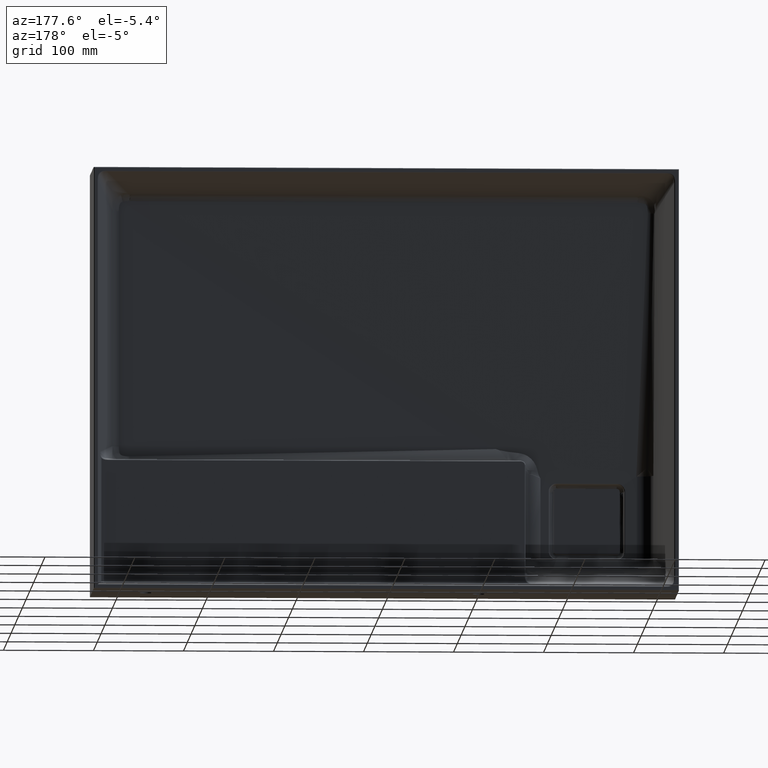
[diagram: clean part render]
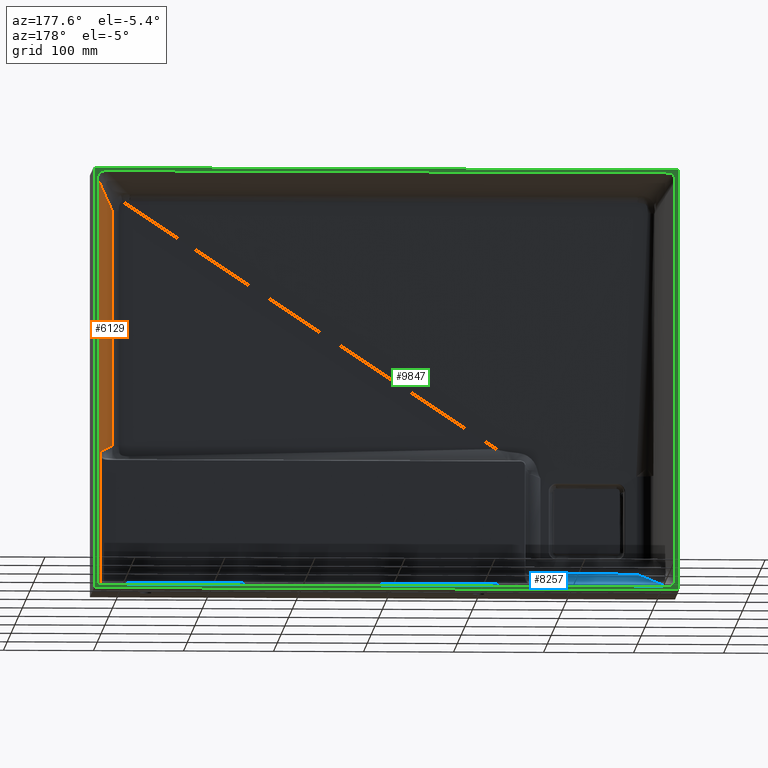
[diagram: same view with three faces highlighted in distinct colors, each labeled with its STEP entity id]
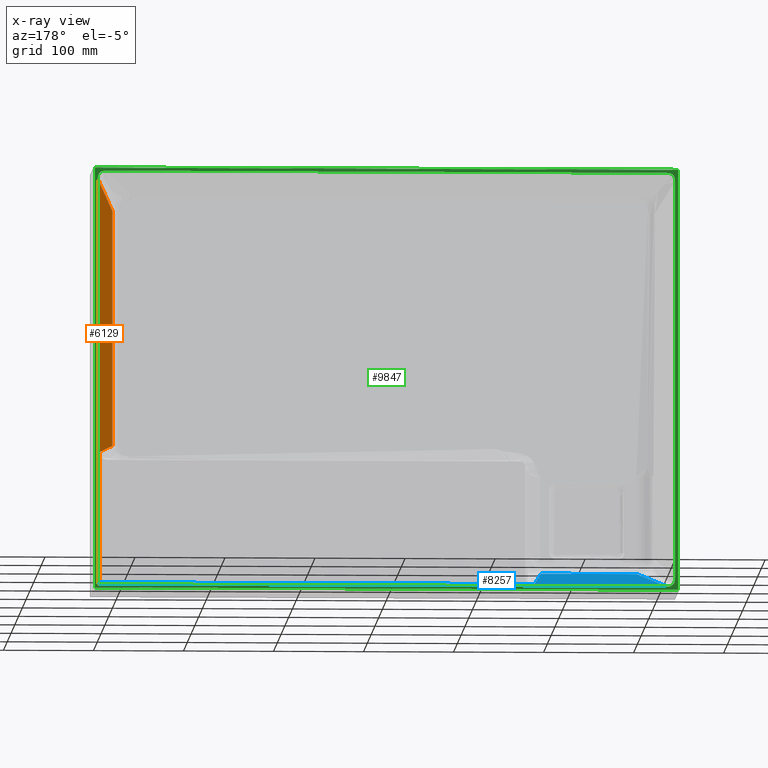
[diagram: x-ray of the same camera — body ghosted, the three highlighted faces saturated]
A machine part, auxiliary view with three faces highlighted in distinct colors.
The next image is the same camera in x-ray (body ghosted, the three faces saturated) — at least one of them is partly hidden behind the body in this view.
Their STEP definitions:

[orange] entity #6129 — the highlighted planar face has unit normal (0.9659, -0.2588, -0).
#19 = CARTESIAN_POINT ( 'NONE',  ( 317.7177057523090866, 96.48236190979496030, -82.09029399447464925 ) ) ;
#155 = B_SPLINE_CURVE_WITH_KNOTS ( 'NONE', 3,
 ( #10737, #8692, #3146, #3729 ),
 .UNSPECIFIED., .F., .F.,
 ( 4, 4 ),
 ( 0.0000000000000000000, 0.9136338815454096984 ),
 .UNSPECIFIED. ) ;
#617 = CARTESIAN_POINT ( 'NONE',  ( 301.4423275492905532, 35.74182354373097326, -69.52660627536678817 ) ) ;
#629 = EDGE_CURVE ( 'NONE', #2993, #10682, #155, .T. ) ;
#975 = B_SPLINE_CURVE_WITH_KNOTS ( 'NONE', 3,
 ( #9517, #9508, #9503, #9489 ),
 .UNSPECIFIED., .F., .F.,
 ( 4, 4 ),
 ( 0.07655764724086498718, 0.9901175872699210512 ),
 .UNSPECIFIED. ) ;
#1428 = DIRECTION ( 'NONE',  ( 2.433701038385323601E-16, 7.528563083090712696E-18, 1.000000000000000000 ) ) ;
#1512 = CARTESIAN_POINT ( 'NONE',  ( 301.4423275492607672, 35.74182354361966674, 229.9999999999999716 ) ) ;
#1560 = LINE ( 'NONE', #1512, #11184 ) ;
#2397 = LINE ( 'NONE', #6015, #10379 ) ;
#2693 = DIRECTION ( 'NONE',  ( -2.413528314402514583E-16, -1.232595164407830946E-32, -1.000000000000000000 ) ) ;
#2708 = EDGE_CURVE ( 'NONE', #5634, #3888, #2752, .T. ) ;
#2734 = CARTESIAN_POINT ( 'NONE',  ( 319.8014011616900234, 104.2588190451025270, 229.9999999999999716 ) ) ;
#2752 = LINE ( 'NONE', #2734, #3246 ) ;
#2993 = VERTEX_POINT ( 'NONE', #19 ) ;
#3044 = CARTESIAN_POINT ( 'NONE',  ( 319.8014011616898529, 104.2588190451025127, -229.8014011616898813 ) ) ;
#3146 = CARTESIAN_POINT ( 'NONE',  ( 306.8674536169633598, 55.98866966575230464, -73.71450218173562519 ) ) ;
#3185 = VERTEX_POINT ( 'NONE', #9003 ) ;
#3233 = VERTEX_POINT ( 'NONE', #8537 ) ;
#3246 = VECTOR ( 'NONE', #2693, 1000.000000000000000 ) ;
#3472 = EDGE_LOOP ( 'NONE', ( #9516, #9268, #5281, #5156, #6033, #4777 ) ) ;
#3496 = EDGE_CURVE ( 'NONE', #3233, #2993, #6623, .T. ) ;
#3729 = CARTESIAN_POINT ( 'NONE',  ( 301.4423275492905532, 35.74182354373097326, -69.52660627536678817 ) ) ;
#3888 = VERTEX_POINT ( 'NONE', #3044 ) ;
#4218 = EDGE_CURVE ( 'NONE', #10682, #3185, #1560, .T. ) ;
#4777 = ORIENTED_EDGE ( 'NONE', *, *, #4218, .T. ) ;
#5156 = ORIENTED_EDGE ( 'NONE', *, *, #3496, .T. ) ;
#5281 = ORIENTED_EDGE ( 'NONE', *, *, #9765, .F. ) ;
#5634 = VERTEX_POINT ( 'NONE', #9702 ) ;
#5748 = EDGE_CURVE ( 'NONE', #3185, #5634, #975, .T. ) ;
#6015 = CARTESIAN_POINT ( 'NONE',  ( 291.1204086644463587, -2.780102166111783735, -201.1204086644463587 ) ) ;
#6033 = ORIENTED_EDGE ( 'NONE', *, *, #629, .T. ) ;
#6129 = ADVANCED_FACE ( 'NONE', ( #8222 ), #8212, .F. ) ;
#6581 = DIRECTION ( 'NONE',  ( 2.413528314402514583E-16, 1.232595164407830946E-32, 1.000000000000000000 ) ) ;
#6607 = CARTESIAN_POINT ( 'NONE',  ( 317.7177057523091435, 96.48236190979496030, 229.9999999999999716 ) ) ;
#6623 = LINE ( 'NONE', #6607, #11017 ) ;
#8189 = DIRECTION ( 'NONE',  ( 0.2588190451025213501, 0.9659258262890680902, 0.0000000000000000000 ) ) ;
#8197 = DIRECTION ( 'NONE',  ( 0.9659258262890680902, -0.2588190451025213501, -2.331289331361310231E-16 ) ) ;
#8211 = CARTESIAN_POINT ( 'NONE',  ( 320.0000000000001137, 105.0000000000000000, 229.9999999999999716 ) ) ;
#8212 = PLANE ( 'NONE',  #11029 ) ;
#8222 = FACE_OUTER_BOUND ( 'NONE', #3472, .T. ) ;
#8537 = CARTESIAN_POINT ( 'NONE',  ( 317.7177057523089729, 96.48236190979493188, -227.7177057523089445 ) ) ;
#8692 = CARTESIAN_POINT ( 'NONE',  ( 312.2925796846361095, 76.23551578777328075, -77.90239808810513011 ) ) ;
#9003 = CARTESIAN_POINT ( 'NONE',  ( 301.4423275491127470, 35.74182354306726239, 192.2903972529838938 ) ) ;
#9259 = DIRECTION ( 'NONE',  ( 0.2505628070857320311, 0.9351131265310290708, -0.2505628070857320866 ) ) ;
#9268 = ORIENTED_EDGE ( 'NONE', *, *, #2708, .T. ) ;
#9489 = CARTESIAN_POINT ( 'NONE',  ( 319.8014011616839980, 104.2588190450799601, 220.0405550708178737 ) ) ;
#9503 = CARTESIAN_POINT ( 'NONE',  ( 313.6817099574943200, 81.41982054441199068, 210.7905024648733843 ) ) ;
#9508 = CARTESIAN_POINT ( 'NONE',  ( 307.5620187533014587, 58.58082204373192781, 201.5404498589289233 ) ) ;
#9516 = ORIENTED_EDGE ( 'NONE', *, *, #5748, .T. ) ;
#9517 = CARTESIAN_POINT ( 'NONE',  ( 301.4423275491127470, 35.74182354306726239, 192.2903972529838938 ) ) ;
#9702 = CARTESIAN_POINT ( 'NONE',  ( 319.8014011616839980, 104.2588190450799601, 220.0405550708178737 ) ) ;
#9765 = EDGE_CURVE ( 'NONE', #3233, #3888, #2397, .T. ) ;
#10379 = VECTOR ( 'NONE', #9259, 1000.000000000000227 ) ;
#10682 = VERTEX_POINT ( 'NONE', #617 ) ;
#10737 = CARTESIAN_POINT ( 'NONE',  ( 317.7177057523090866, 96.48236190979496030, -82.09029399447464925 ) ) ;
#11017 = VECTOR ( 'NONE', #6581, 1000.000000000000000 ) ;
#11029 = AXIS2_PLACEMENT_3D ( 'NONE', #8211, #8197, #8189 ) ;
#11184 = VECTOR ( 'NONE', #1428, 1000.000000000000000 ) ;

[blue] entity #8257 — the highlighted planar face has unit normal (0, -0.2588, -0.9659).
#322 = CARTESIAN_POINT ( 'NONE',  ( -267.6959145319825097, 29.08243814305209440, -209.6579506090909319 ) ) ;
#335 = CARTESIAN_POINT ( 'NONE',  ( -272.2953486937344110, 29.22471991754748899, -209.6960748956646228 ) ) ;
#348 = CARTESIAN_POINT ( 'NONE',  ( -276.8947828554856301, 29.36700169204284805, -209.7341991822383420 ) ) ;
#363 = CARTESIAN_POINT ( 'NONE',  ( -281.4942170164327422, 29.50928346663760138, -209.7723234688387208 ) ) ;
#449 = CARTESIAN_POINT ( 'NONE',  ( -164.8968367596559403, 96.48236190979494609, -227.7177057523089445 ) ) ;
#627 = DIRECTION ( 'NONE',  ( 0.0000000000000000000, 0.9659258262890680902, -0.2588190451025213501 ) ) ;
#638 = DIRECTION ( 'NONE',  ( 0.0000000000000000000, -0.2588190451025213501, -0.9659258262890680902 ) ) ;
#647 = CARTESIAN_POINT ( 'NONE',  ( 320.0000000000000000, 105.0000000000000000, -229.9999999999999716 ) ) ;
#658 = PLANE ( 'NONE',  #794 ) ;
#662 = FACE_OUTER_BOUND ( 'NONE', #5594, .T. ) ;
#794 = AXIS2_PLACEMENT_3D ( 'NONE', #647, #638, #627 ) ;
#859 = VERTEX_POINT ( 'NONE', #5101 ) ;
#966 = CARTESIAN_POINT ( 'NONE',  ( -291.0153185284444817, 54.42579532599831538, -216.4486826997548974 ) ) ;
#969 = EDGE_CURVE ( 'NONE', #859, #3848, #8434, .T. ) ;
#994 = ORIENTED_EDGE ( 'NONE', *, *, #9320, .T. ) ;
#1058 = ORIENTED_EDGE ( 'NONE', *, *, #10913, .T. ) ;
#1082 = CARTESIAN_POINT ( 'NONE',  ( -164.8968367596559403, 96.48236190979494609, -227.7177057523089445 ) ) ;
#1104 = CARTESIAN_POINT ( 'NONE',  ( -174.9706832318464649, 29.40146225647339406, -209.7434328626482340 ) ) ;
#1122 = CARTESIAN_POINT ( 'NONE',  ( -178.4082994463186935, 29.29512088522945135, -209.7149387781014696 ) ) ;
#1136 = CARTESIAN_POINT ( 'NONE',  ( -181.8459156605359226, 29.18877951414074801, -209.6864446935962008 ) ) ;
#1166 = CARTESIAN_POINT ( 'NONE',  ( -185.2835318747528106, 29.08243814305209440, -209.6579506090909319 ) ) ;
#1276 = VECTOR ( 'NONE', #8394, 1000.000000000000000 ) ;
#1364 = CARTESIAN_POINT ( 'NONE',  ( -174.9706832318464649, 29.40146225647339406, -209.7434328626482340 ) ) ;
#1961 = VERTEX_POINT ( 'NONE', #2918 ) ;
#2294 = EDGE_CURVE ( 'NONE', #5259, #3233, #8421, .T. ) ;
#2394 = ORIENTED_EDGE ( 'NONE', *, *, #2294, .T. ) ;
#2397 = LINE ( 'NONE', #6015, #10379 ) ;
#2465 = B_SPLINE_CURVE_WITH_KNOTS ( 'NONE', 3,
 ( #363, #348, #335, #322 ),
 .UNSPECIFIED., .F., .F.,
 ( 4, 4 ),
 ( -0.03236793165791426036, -0.01856255482293456965 ),
 .UNSPECIFIED. ) ;
#2918 = CARTESIAN_POINT ( 'NONE',  ( -281.4942170164327422, 29.50928346663760138, -209.7723234688387208 ) ) ;
#2984 = ORIENTED_EDGE ( 'NONE', *, *, #9709, .T. ) ;
#3044 = CARTESIAN_POINT ( 'NONE',  ( 319.8014011616898529, 104.2588190451025127, -229.8014011616898813 ) ) ;
#3145 = CARTESIAN_POINT ( 'NONE',  ( -185.2835318747528106, 29.08243814305209440, -209.6579506090909319 ) ) ;
#3167 = VERTEX_POINT ( 'NONE', #9039 ) ;
#3233 = VERTEX_POINT ( 'NONE', #8537 ) ;
#3692 = VERTEX_POINT ( 'NONE', #4451 ) ;
#3848 = VERTEX_POINT ( 'NONE', #3145 ) ;
#3888 = VERTEX_POINT ( 'NONE', #3044 ) ;
#4110 = LINE ( 'NONE', #7623, #9551 ) ;
#4451 = CARTESIAN_POINT ( 'NONE',  ( -310.0575215508918063, 104.2588190451016601, -229.8014011616896255 ) ) ;
#4542 = B_SPLINE_CURVE_WITH_KNOTS ( 'NONE', 3,
 ( #5492, #8819, #966, #4584 ),
 .UNSPECIFIED., .F., .F.,
 ( 4, 4 ),
 ( 0.008258209240227496611, 0.8411146133847914319 ),
 .UNSPECIFIED. ) ;
#4584 = CARTESIAN_POINT ( 'NONE',  ( -281.4942170164327422, 29.50928346663760138, -209.7723234688387208 ) ) ;
#4972 = CARTESIAN_POINT ( 'NONE',  ( -171.6127344079476416, 51.76176214096295070, -215.7348571592149540 ) ) ;
#5101 = CARTESIAN_POINT ( 'NONE',  ( -267.6959145319825097, 29.08243814305209440, -209.6579506090909319 ) ) ;
#5116 = B_SPLINE_CURVE_WITH_KNOTS ( 'NONE', 3,
 ( #1364, #4972, #8364, #449 ),
 .UNSPECIFIED., .F., .F.,
 ( 4, 4 ),
 ( 0.1742689622615147815, 1.000000000000000000 ),
 .UNSPECIFIED. ) ;
#5259 = VERTEX_POINT ( 'NONE', #1082 ) ;
#5492 = CARTESIAN_POINT ( 'NONE',  ( -310.0575215508918063, 104.2588190451016601, -229.8014011616896255 ) ) ;
#5594 = EDGE_LOOP ( 'NONE', ( #8975, #1058, #994, #9783, #7391, #6479, #2984, #2394 ) ) ;
#6015 = CARTESIAN_POINT ( 'NONE',  ( 291.1204086644463587, -2.780102166111783735, -201.1204086644463587 ) ) ;
#6479 = ORIENTED_EDGE ( 'NONE', *, *, #9180, .T. ) ;
#7391 = ORIENTED_EDGE ( 'NONE', *, *, #969, .T. ) ;
#7451 = CARTESIAN_POINT ( 'NONE',  ( -212.7543260938293770, 29.08243814305209440, -209.6579506090909319 ) ) ;
#7623 = CARTESIAN_POINT ( 'NONE',  ( 320.0000000000000000, 104.2588190451025270, -229.8014011616898813 ) ) ;
#8257 = ADVANCED_FACE ( 'NONE', ( #662 ), #658, .F. ) ;
#8364 = CARTESIAN_POINT ( 'NONE',  ( -168.2547855838017767, 74.12206202555545076, -221.7262814558092430 ) ) ;
#8394 = DIRECTION ( 'NONE',  ( 1.000000000000000000, 0.0000000000000000000, 0.0000000000000000000 ) ) ;
#8409 = CARTESIAN_POINT ( 'NONE',  ( 320.0000000000000000, 96.48236190979494609, -227.7177057523089445 ) ) ;
#8421 = LINE ( 'NONE', #8409, #1276 ) ;
#8434 = B_SPLINE_CURVE_WITH_KNOTS ( 'NONE', 3,
 ( #10581, #8759, #7451, #8891 ),
 .UNSPECIFIED., .F., .F.,
 ( 4, 4 ),
 ( 0.1852835318747508009, 0.2676959145319804945 ),
 .UNSPECIFIED. ) ;
#8537 = CARTESIAN_POINT ( 'NONE',  ( 317.7177057523089729, 96.48236190979493188, -227.7177057523089445 ) ) ;
#8557 = B_SPLINE_CURVE_WITH_KNOTS ( 'NONE', 3,
 ( #1166, #1136, #1122, #1104 ),
 .UNSPECIFIED., .F., .F.,
 ( 4, 4 ),
 ( 0.4790181454550358486, 0.4893362814653213766 ),
 .UNSPECIFIED. ) ;
#8759 = CARTESIAN_POINT ( 'NONE',  ( -240.2251203129060002, 29.08243814305209440, -209.6579506090909319 ) ) ;
#8819 = CARTESIAN_POINT ( 'NONE',  ( -300.5364200396835486, 79.34230718554086081, -223.1250419307198172 ) ) ;
#8891 = CARTESIAN_POINT ( 'NONE',  ( -185.2835318747528106, 29.08243814305209440, -209.6579506090909319 ) ) ;
#8975 = ORIENTED_EDGE ( 'NONE', *, *, #9765, .T. ) ;
#9039 = CARTESIAN_POINT ( 'NONE',  ( -174.9706832318464649, 29.40146225647339406, -209.7434328626482340 ) ) ;
#9180 = EDGE_CURVE ( 'NONE', #3848, #3167, #8557, .T. ) ;
#9259 = DIRECTION ( 'NONE',  ( 0.2505628070857320311, 0.9351131265310290708, -0.2505628070857320866 ) ) ;
#9264 = EDGE_CURVE ( 'NONE', #1961, #859, #2465, .T. ) ;
#9320 = EDGE_CURVE ( 'NONE', #3692, #1961, #4542, .T. ) ;
#9551 = VECTOR ( 'NONE', #10821, 1000.000000000000000 ) ;
#9709 = EDGE_CURVE ( 'NONE', #3167, #5259, #5116, .T. ) ;
#9765 = EDGE_CURVE ( 'NONE', #3233, #3888, #2397, .T. ) ;
#9783 = ORIENTED_EDGE ( 'NONE', *, *, #9264, .T. ) ;
#10379 = VECTOR ( 'NONE', #9259, 1000.000000000000227 ) ;
#10581 = CARTESIAN_POINT ( 'NONE',  ( -267.6959145319825097, 29.08243814305209440, -209.6579506090909319 ) ) ;
#10821 = DIRECTION ( 'NONE',  ( -1.000000000000000000, 0.0000000000000000000, 0.0000000000000000000 ) ) ;
#10913 = EDGE_CURVE ( 'NONE', #3888, #3692, #4110, .T. ) ;

[green] entity #9847 — the highlighted planar face has unit normal (0, -1, 0).
#505 = EDGE_CURVE ( 'NONE', #9317, #4720, #7629, .T. ) ;
#1118 = VERTEX_POINT ( 'NONE', #9602 ) ;
#1123 = ORIENTED_EDGE ( 'NONE', *, *, #2600, .T. ) ;
#1275 = VERTEX_POINT ( 'NONE', #9022 ) ;
#1357 = ORIENTED_EDGE ( 'NONE', *, *, #3932, .T. ) ;
#1604 = CARTESIAN_POINT ( 'NONE',  ( 0.0000000000000000000, 105.0000000000000000, 0.0000000000000000000 ) ) ;
#1642 = CARTESIAN_POINT ( 'NONE',  ( 0.0000000000000000000, 105.0000000000000000, 230.7673269879789473 ) ) ;
#1817 = CARTESIAN_POINT ( 'NONE',  ( 310.0405550713633147, 105.0000000000000000, 230.7673269879789757 ) ) ;
#1847 = CARTESIAN_POINT ( 'NONE',  ( 310.7880760937716218, 105.0000000000000568, 230.7673269878629299 ) ) ;
#1863 = CARTESIAN_POINT ( 'NONE',  ( 311.5374070847179837, 105.0000000000000000, 230.7644728776367629 ) ) ;
#1903 = CARTESIAN_POINT ( 'NONE',  ( 313.0255570988388172, 104.9999999999999716, 230.6681814069422387 ) ) ;
#1933 = CARTESIAN_POINT ( 'NONE',  ( 313.7624058785877423, 104.9999999999999289, 230.5771805009353557 ) ) ;
#1985 = CARTESIAN_POINT ( 'NONE',  ( 314.8500033480073057, 104.9999999999999289, 230.3358533294936592 ) ) ;
#2042 = CARTESIAN_POINT ( 'NONE',  ( 315.2095938184653505, 105.0000000000000142, 230.2379632812204306 ) ) ;
#2093 = EDGE_CURVE ( 'NONE', #4720, #3677, #6870, .T. ) ;
#2161 = EDGE_CURVE ( 'NONE', #5393, #3746, #9900, .T. ) ;
#2371 = CARTESIAN_POINT ( 'NONE',  ( 315.9212969005829450, 105.0000000000000568, 229.9978357124509500 ) ) ;
#2420 = CARTESIAN_POINT ( 'NONE',  ( 316.2688929435346950, 104.9999999999999716, 229.8569278385854489 ) ) ;
#2470 = CARTESIAN_POINT ( 'NONE',  ( 316.9382957904019236, 104.9999999999999432, 229.5281067765396017 ) ) ;
#2509 = FACE_OUTER_BOUND ( 'NONE', #3845, .T. ) ;
#2531 = CARTESIAN_POINT ( 'NONE',  ( 317.2610150471398356, 104.9999999999999432, 229.3399155295483922 ) ) ;
#2600 = EDGE_CURVE ( 'NONE', #3113, #6567, #3594, .T. ) ;
#2638 = VECTOR ( 'NONE', #8093, 1000.000000000000000 ) ;
#2660 = CARTESIAN_POINT ( 'NONE',  ( 317.8775587413749122, 104.9999999999999858, 228.9061861878083164 ) ) ;
#2717 = CARTESIAN_POINT ( 'NONE',  ( 318.1625433164970786, 105.0000000000000284, 228.6665844975060224 ) ) ;
#2773 = CARTESIAN_POINT ( 'NONE',  ( -319.6170451622263045, 105.0000000000000142, -226.7508538709254537 ) ) ;
#2830 = CARTESIAN_POINT ( 'NONE',  ( 0.0000000000000000000, 105.0000000000000000, 234.0000000000000000 ) ) ;
#2839 = CARTESIAN_POINT ( 'NONE',  ( 318.6848200159386693, 105.0000000000000142, 228.1420193680768023 ) ) ;
#2844 = LINE ( 'NONE', #2830, #9501 ) ;
#3039 = CARTESIAN_POINT ( 'NONE',  ( 318.9222359837187923, 105.0000000000000853, 227.8569779410024978 ) ) ;
#3067 = CARTESIAN_POINT ( 'NONE',  ( 319.2438657915040494, 105.0000000000000853, 227.3963226871088068 ) ) ;
#3113 = VERTEX_POINT ( 'NONE', #10063 ) ;
#3237 = CARTESIAN_POINT ( 'NONE',  ( 319.3454692957126895, 105.0000000000000000, 227.2368992792881670 ) ) ;
#3268 = DIRECTION ( 'NONE',  ( -0.0000000000000000000, -0.0000000000000000000, -1.000000000000000000 ) ) ;
#3279 = CARTESIAN_POINT ( 'NONE',  ( -320.7673269879789473, 105.0000000000000000, 0.0000000000000000000 ) ) ;
#3282 = LINE ( 'NONE', #3279, #7851 ) ;
#3300 = CARTESIAN_POINT ( 'NONE',  ( 319.5341825768630315, 105.0000000000000568, 226.9134643005600367 ) ) ;
#3341 = CARTESIAN_POINT ( 'NONE',  ( 319.6218199786157470, 105.0000000000000568, 226.7487662406520030 ) ) ;
#3377 = DIRECTION ( 'NONE',  ( 0.0000000000000000000, 0.0000000000000000000, 1.000000000000000000 ) ) ;
#3380 = CARTESIAN_POINT ( 'NONE',  ( -323.9999999999999432, 105.0000000000000000, 0.0000000000000000000 ) ) ;
#3391 = LINE ( 'NONE', #3380, #9698 ) ;
#3394 = CARTESIAN_POINT ( 'NONE',  ( 319.8665233189466335, 105.0000000000000568, 226.2465948355348644 ) ) ;
#3395 = EDGE_LOOP ( 'NONE', ( #10970, #7041, #11104, #4606, #1123, #4372, #6857 ) ) ;
#3446 = CARTESIAN_POINT ( 'NONE',  ( 320.0054618753512159, 104.9999999999999574, 225.9010804096660081 ) ) ;
#3461 = CARTESIAN_POINT ( 'NONE',  ( 320.2429974632605649, 104.9999999999999574, 225.1921565605946682 ) ) ;
#3552 = DIRECTION ( 'NONE',  ( 1.000000000000000000, -0.0000000000000000000, -0.0000000000000000000 ) ) ;
#3563 = CARTESIAN_POINT ( 'NONE',  ( 320.3414093067274848, 105.0000000000000142, 224.8282885692438242 ) ) ;
#3566 = CARTESIAN_POINT ( 'NONE',  ( 0.0000000000000000000, 105.0000000000000000, -230.7673269879789473 ) ) ;
#3594 = LINE ( 'NONE', #3566, #5311 ) ;
#3599 = CARTESIAN_POINT ( 'NONE',  ( 320.5811053670250317, 105.0000000000000284, 223.7377467736455117 ) ) ;
#3661 = CARTESIAN_POINT ( 'NONE',  ( 320.6702248409571325, 104.9999999999999858, 223.0035616304111272 ) ) ;
#3667 = AXIS2_PLACEMENT_3D ( 'NONE', #1604, #5205, #8568 ) ;
#3677 = VERTEX_POINT ( 'NONE', #4559 ) ;
#3717 = CARTESIAN_POINT ( 'NONE',  ( 320.7645320979436292, 104.9999999999999858, 221.5266919038897697 ) ) ;
#3736 = CARTESIAN_POINT ( 'NONE',  ( 320.7673269876281665, 105.0000000000000000, 220.7837650014793098 ) ) ;
#3746 = VERTEX_POINT ( 'NONE', #4014 ) ;
#3790 = CARTESIAN_POINT ( 'NONE',  ( 320.7673269879791178, 105.0000000000000000, 220.0405550713580851 ) ) ;
#3845 = EDGE_LOOP ( 'NONE', ( #7652, #4275, #10308, #1357 ) ) ;
#3932 = EDGE_CURVE ( 'NONE', #1275, #5393, #2844, .T. ) ;
#4014 = CARTESIAN_POINT ( 'NONE',  ( 324.0000000000000000, 105.0000000000000000, -234.0000000000000000 ) ) ;
#4057 = EDGE_CURVE ( 'NONE', #3746, #1118, #6985, .T. ) ;
#4275 = ORIENTED_EDGE ( 'NONE', *, *, #4057, .T. ) ;
#4372 = ORIENTED_EDGE ( 'NONE', *, *, #4394, .T. ) ;
#4394 = EDGE_CURVE ( 'NONE', #6567, #5812, #8910, .T. ) ;
#4559 = CARTESIAN_POINT ( 'NONE',  ( -320.7673269879789473, 105.0000000000000000, 220.0405550710285922 ) ) ;
#4604 = CARTESIAN_POINT ( 'NONE',  ( -317.8571143734395719, 105.0000000000001137, 228.9221223121518847 ) ) ;
#4606 = ORIENTED_EDGE ( 'NONE', *, *, #6110, .T. ) ;
#4720 = VERTEX_POINT ( 'NONE', #6101 ) ;
#5205 = DIRECTION ( 'NONE',  ( 0.0000000000000000000, -1.000000000000000000, 0.0000000000000000000 ) ) ;
#5206 = EDGE_CURVE ( 'NONE', #5812, #9317, #9409, .T. ) ;
#5311 = VECTOR ( 'NONE', #3552, 1000.000000000000000 ) ;
#5393 = VERTEX_POINT ( 'NONE', #10953 ) ;
#5421 = B_SPLINE_CURVE_WITH_KNOTS ( 'NONE', 3,
 ( #8404, #8390, #8388, #8381, #8379, #8368, #8365, #8356, #8351, #2773, #8340, #8339, #8326, #8325, #8323, #8313, #8311, #8301, #8297, #8284, #8273, #8269, #8260, #8258, #8249, #8245, #8240, #8226 ),
 .UNSPECIFIED., .F., .F.,
 ( 4, 2, 2, 2, 2, 2, 2, 2, 2, 2, 2, 2, 2, 4 ),
 ( 0.0000000000000000000, 0.002214183529667033967, 0.004428367059334067934, 0.005535458824167623949, 0.006642550589001181699, 0.007196096471417923711, 0.007749642353834664855, 0.008856734118668148012, 0.009963825883501632036, 0.01107091764833511606, 0.01217800941316859835, 0.01328510117800208237, 0.01549928470766922910, 0.01771346823733637235 ),
 .UNSPECIFIED. ) ;
#5490 = CARTESIAN_POINT ( 'NONE',  ( -320.7673269879789473, 105.0000000000000000, -220.0575215516060723 ) ) ;
#5812 = VERTEX_POINT ( 'NONE', #9455 ) ;
#6101 = CARTESIAN_POINT ( 'NONE',  ( -310.0405550709568274, 105.0000000000000000, 230.7673269879789473 ) ) ;
#6108 = VECTOR ( 'NONE', #8165, 1000.000000000000000 ) ;
#6110 = EDGE_CURVE ( 'NONE', #6603, #3113, #5421, .T. ) ;
#6118 = FACE_BOUND ( 'NONE', #3395, .T. ) ;
#6567 = VERTEX_POINT ( 'NONE', #6612 ) ;
#6603 = VERTEX_POINT ( 'NONE', #5490 ) ;
#6612 = CARTESIAN_POINT ( 'NONE',  ( 320.7673269879790041, 105.0000000000000000, -230.7673269879789473 ) ) ;
#6857 = ORIENTED_EDGE ( 'NONE', *, *, #5206, .T. ) ;
#6870 = B_SPLINE_CURVE_WITH_KNOTS ( 'NONE', 3,
 ( #10678, #10644, #10643, #10632, #10615, #10591, #10580, #10569, #10542, #10530, #10512, #10487, #10474, #4604, #10456, #10429, #10419, #10401, #10389, #10373, #10362, #10347, #10341, #10328, #10304, #10289, #10286, #10277 ),
 .UNSPECIFIED., .F., .F.,
 ( 4, 2, 2, 2, 2, 2, 2, 2, 2, 2, 2, 2, 2, 4 ),
 ( 0.0000000000000000000, 0.002218448687804591528, 0.004436897375609183056, 0.005546121719511407262, 0.006655346063413631469, 0.007209958235364835946, 0.007764570407316039556, 0.008873794751218402541, 0.009983019095120764658, 0.01109224343902312677, 0.01220146778292549063, 0.01331069212682785274, 0.01552914081463262208, 0.01774758950243739142 ),
 .UNSPECIFIED. ) ;
#6931 = DIRECTION ( 'NONE',  ( -1.000000000000000000, 0.0000000000000000000, 0.0000000000000000000 ) ) ;
#6941 = CARTESIAN_POINT ( 'NONE',  ( 0.0000000000000000000, 105.0000000000000000, -234.0000000000000000 ) ) ;
#6985 = LINE ( 'NONE', #6941, #9006 ) ;
#7041 = ORIENTED_EDGE ( 'NONE', *, *, #2093, .T. ) ;
#7066 = EDGE_CURVE ( 'NONE', #1118, #1275, #3391, .T. ) ;
#7125 = EDGE_CURVE ( 'NONE', #3677, #6603, #3282, .T. ) ;
#7629 = LINE ( 'NONE', #1642, #2638 ) ;
#7652 = ORIENTED_EDGE ( 'NONE', *, *, #2161, .T. ) ;
#7851 = VECTOR ( 'NONE', #3268, 1000.000000000000000 ) ;
#8093 = DIRECTION ( 'NONE',  ( -1.000000000000000000, -0.0000000000000000000, -0.0000000000000000000 ) ) ;
#8165 = DIRECTION ( 'NONE',  ( 2.413528314402515076E-16, -0.0000000000000000000, 1.000000000000000000 ) ) ;
#8226 = CARTESIAN_POINT ( 'NONE',  ( -310.0575215509299483, 105.0000000000000000, -230.7673269879789473 ) ) ;
#8240 = CARTESIAN_POINT ( 'NONE',  ( -310.8034514319491564, 104.9999999999999858, -230.7673269879964835 ) ) ;
#8245 = CARTESIAN_POINT ( 'NONE',  ( -311.5511982003080789, 104.9999999999999858, -230.7643933475626170 ) ) ;
#8249 = CARTESIAN_POINT ( 'NONE',  ( -313.0361535346551705, 104.9999999999999716, -230.6672795527491076 ) ) ;
#8258 = CARTESIAN_POINT ( 'NONE',  ( -313.7712833937759456, 105.0000000000000142, -230.5755854188137448 ) ) ;
#8260 = CARTESIAN_POINT ( 'NONE',  ( -314.8561148279030704, 105.0000000000000142, -230.3331727045213029 ) ) ;
#8263 = CARTESIAN_POINT ( 'NONE',  ( 320.7673269879790610, 105.0000000000000000, -7.741810260206973813E-14 ) ) ;
#8269 = CARTESIAN_POINT ( 'NONE',  ( -315.2147524943101189, 105.0000000000000426, -230.2349157951325935 ) ) ;
#8273 = CARTESIAN_POINT ( 'NONE',  ( -315.9244920222816972, 104.9999999999999858, -229.9941610553054829 ) ) ;
#8284 = CARTESIAN_POINT ( 'NONE',  ( -316.2711136320615424, 104.9999999999999289, -229.8529864391246349 ) ) ;
#8297 = CARTESIAN_POINT ( 'NONE',  ( -316.9385312514164070, 104.9999999999999716, -229.5239387054087103 ) ) ;
#8301 = CARTESIAN_POINT ( 'NONE',  ( -317.2602562436265998, 105.0000000000000284, -229.3357793414048729 ) ) ;
#8311 = CARTESIAN_POINT ( 'NONE',  ( -317.8748964048510288, 105.0000000000000284, -228.9026394463722056 ) ) ;
#8313 = CARTESIAN_POINT ( 'NONE',  ( -318.1594662502880055, 105.0000000000000284, -228.6632057996647234 ) ) ;
#8323 = CARTESIAN_POINT ( 'NONE',  ( -318.6806680106989234, 105.0000000000000142, -228.1398260823268913 ) ) ;
#8325 = CARTESIAN_POINT ( 'NONE',  ( -318.9176581815051463, 105.0000000000000142, -227.8556379234857161 ) ) ;
#8326 = CARTESIAN_POINT ( 'NONE',  ( -319.2388518799783697, 105.0000000000000142, -227.3966797606567809 ) ) ;
#8339 = CARTESIAN_POINT ( 'NONE',  ( -319.3404556920332311, 104.9999999999999858, -227.2377281130313520 ) ) ;
#8340 = CARTESIAN_POINT ( 'NONE',  ( -319.5293150871323178, 105.0000000000000000, -226.9151100960569067 ) ) ;
#8351 = CARTESIAN_POINT ( 'NONE',  ( -319.8620753425386738, 104.9999999999999716, -226.2500964488295097 ) ) ;
#8356 = CARTESIAN_POINT ( 'NONE',  ( -320.0012968421820574, 105.0000000000000142, -225.9056423309937713 ) ) ;
#8365 = CARTESIAN_POINT ( 'NONE',  ( -320.2394733926261097, 104.9999999999999716, -225.1990205675796233 ) ) ;
#8368 = CARTESIAN_POINT ( 'NONE',  ( -320.3383714319496107, 104.9999999999999716, -224.8359734249563360 ) ) ;
#8379 = CARTESIAN_POINT ( 'NONE',  ( -320.5794347252438570, 105.0000000000000000, -223.7475256193852715 ) ) ;
#8381 = CARTESIAN_POINT ( 'NONE',  ( -320.6692858848099377, 105.0000000000000568, -223.0147758087667853 ) ) ;
#8388 = CARTESIAN_POINT ( 'NONE',  ( -320.7644528664543486, 105.0000000000000426, -221.5407842740481215 ) ) ;
#8390 = CARTESIAN_POINT ( 'NONE',  ( -320.7673269879350073, 105.0000000000000142, -220.7992972713361439 ) ) ;
#8404 = CARTESIAN_POINT ( 'NONE',  ( -320.7673269879789473, 105.0000000000000000, -220.0575215516060723 ) ) ;
#8568 = DIRECTION ( 'NONE',  ( 0.0000000000000000000, -0.0000000000000000000, -1.000000000000000000 ) ) ;
#8910 = LINE ( 'NONE', #8263, #6108 ) ;
#9006 = VECTOR ( 'NONE', #6931, 1000.000000000000000 ) ;
#9022 = CARTESIAN_POINT ( 'NONE',  ( -323.9999999999999432, 105.0000000000000000, 234.0000000000000000 ) ) ;
#9317 = VERTEX_POINT ( 'NONE', #9611 ) ;
#9359 = PLANE ( 'NONE',  #3667 ) ;
#9409 = B_SPLINE_CURVE_WITH_KNOTS ( 'NONE', 3,
 ( #3790, #3736, #3717, #3661, #3599, #3563, #3461, #3446, #3394, #3341, #3300, #3237, #3067, #3039, #2839, #2717, #2660, #2531, #2470, #2420, #2371, #2042, #1985, #1933, #1903, #1863, #1847, #1817 ),
 .UNSPECIFIED., .F., .F.,
 ( 4, 2, 2, 2, 2, 2, 2, 2, 2, 2, 2, 2, 2, 4 ),
 ( 0.0000000000000000000, 0.002218284729554479816, 0.004436569459108959633, 0.005545711823886176339, 0.006654854188663393913, 0.007209425371052002700, 0.007763996553440609752, 0.008873138918217893245, 0.009982281282995175004, 0.01109142364777246023, 0.01220056601254974199, 0.01330970837732702548, 0.01552799310688175380, 0.01774627783643648385 ),
 .UNSPECIFIED. ) ;
#9455 = CARTESIAN_POINT ( 'NONE',  ( 320.7673269879791178, 105.0000000000000000, 220.0405550713580851 ) ) ;
#9501 = VECTOR ( 'NONE', #9851, 1000.000000000000000 ) ;
#9602 = CARTESIAN_POINT ( 'NONE',  ( -323.9999999999999432, 105.0000000000000000, -234.0000000000000000 ) ) ;
#9611 = CARTESIAN_POINT ( 'NONE',  ( 310.0405550713633147, 105.0000000000000000, 230.7673269879789757 ) ) ;
#9698 = VECTOR ( 'NONE', #3377, 1000.000000000000000 ) ;
#9847 = ADVANCED_FACE ( 'NONE', ( #2509, #6118 ), #9359, .F. ) ;
#9851 = DIRECTION ( 'NONE',  ( 1.000000000000000000, 0.0000000000000000000, 0.0000000000000000000 ) ) ;
#9887 = DIRECTION ( 'NONE',  ( -2.362176648138631388E-16, 0.0000000000000000000, -1.000000000000000000 ) ) ;
#9899 = CARTESIAN_POINT ( 'NONE',  ( 324.0000000000000568, 105.0000000000000000, -7.653452339969166546E-14 ) ) ;
#9900 = LINE ( 'NONE', #9899, #10443 ) ;
#10063 = CARTESIAN_POINT ( 'NONE',  ( -310.0575215509299483, 105.0000000000000000, -230.7673269879789473 ) ) ;
#10277 = CARTESIAN_POINT ( 'NONE',  ( -320.7673269879789473, 105.0000000000000000, 220.0405550710285922 ) ) ;
#10286 = CARTESIAN_POINT ( 'NONE',  ( -320.7673269879538793, 105.0000000000000000, 220.7880672840062743 ) ) ;
#10289 = CARTESIAN_POINT ( 'NONE',  ( -320.7644751582282652, 105.0000000000000142, 221.5373742759794311 ) ) ;
#10304 = CARTESIAN_POINT ( 'NONE',  ( -320.6681786002000081, 105.0000000000000142, 223.0255980426078111 ) ) ;
#10308 = ORIENTED_EDGE ( 'NONE', *, *, #7066, .T. ) ;
#10328 = CARTESIAN_POINT ( 'NONE',  ( -320.5771705031849024, 105.0000000000000426, 223.7624512261559175 ) ) ;
#10341 = CARTESIAN_POINT ( 'NONE',  ( -320.3358580101769348, 105.0000000000000426, 224.8499821100168390 ) ) ;
#10347 = CARTESIAN_POINT ( 'NONE',  ( -320.2379774139330948, 105.0000000000000426, 225.2095382573392897 ) ) ;
#10362 = CARTESIAN_POINT ( 'NONE',  ( -319.9978919688468295, 105.0000000000000568, 225.9211438369074756 ) ) ;
#10373 = CARTESIAN_POINT ( 'NONE',  ( -319.8569611433560453, 105.0000000000000142, 226.2688145693099671 ) ) ;
#10389 = CARTESIAN_POINT ( 'NONE',  ( -319.5281593990563351, 105.0000000000000142, 226.9381992360464437 ) ) ;
#10401 = CARTESIAN_POINT ( 'NONE',  ( -319.3399899934311179, 105.0000000000000711, 227.2608880264720881 ) ) ;
#10419 = CARTESIAN_POINT ( 'NONE',  ( -318.9063601626756395, 105.0000000000000568, 227.8773325974856618 ) ) ;
#10429 = CARTESIAN_POINT ( 'NONE',  ( -318.6666577819647159, 105.0000000000000995, 228.1624604484243264 ) ) ;
#10443 = VECTOR ( 'NONE', #9887, 1000.000000000000000 ) ;
#10456 = CARTESIAN_POINT ( 'NONE',  ( -318.1421145407937274, 105.0000000000000711, 228.6847351600406455 ) ) ;
#10474 = CARTESIAN_POINT ( 'NONE',  ( -317.3965864895345703, 105.0000000000000711, 229.2436908026311926 ) ) ;
#10487 = CARTESIAN_POINT ( 'NONE',  ( -317.2371642537802359, 105.0000000000000000, 229.3453059317606346 ) ) ;
#10512 = CARTESIAN_POINT ( 'NONE',  ( -316.9137006746283305, 105.0000000000000142, 229.5340534086322748 ) ) ;
#10530 = CARTESIAN_POINT ( 'NONE',  ( -316.7489948486716571, 105.0000000000000284, 229.6217018784711286 ) ) ;
#10542 = CARTESIAN_POINT ( 'NONE',  ( -316.2468200187225875, 105.0000000000000000, 229.8664269806438654 ) ) ;
#10569 = CARTESIAN_POINT ( 'NONE',  ( -315.9013298576891771, 105.0000000000000426, 230.0053651544475599 ) ) ;
#10580 = CARTESIAN_POINT ( 'NONE',  ( -315.1925067987118609, 105.0000000000000426, 230.2428932403442445 ) ) ;
#10591 = CARTESIAN_POINT ( 'NONE',  ( -314.8286168217105114, 104.9999999999999858, 230.3413275387587760 ) ) ;
#10615 = CARTESIAN_POINT ( 'NONE',  ( -313.7379524573875642, 104.9999999999999716, 230.5810793883123608 ) ) ;
#10632 = CARTESIAN_POINT ( 'NONE',  ( -313.0037083924391368, 104.9999999999999716, 230.6702115595981297 ) ) ;
#10643 = CARTESIAN_POINT ( 'NONE',  ( -311.5267496227331208, 105.0000000000000000, 230.7645323226388427 ) ) ;
#10644 = CARTESIAN_POINT ( 'NONE',  ( -310.7837933499117185, 105.0000000000000284, 230.7673269880267526 ) ) ;
#10678 = CARTESIAN_POINT ( 'NONE',  ( -310.0405550709568274, 105.0000000000000000, 230.7673269879789473 ) ) ;
#10953 = CARTESIAN_POINT ( 'NONE',  ( 324.0000000000001137, 105.0000000000000000, 234.0000000000000000 ) ) ;
#10970 = ORIENTED_EDGE ( 'NONE', *, *, #505, .T. ) ;
#11104 = ORIENTED_EDGE ( 'NONE', *, *, #7125, .T. ) ;